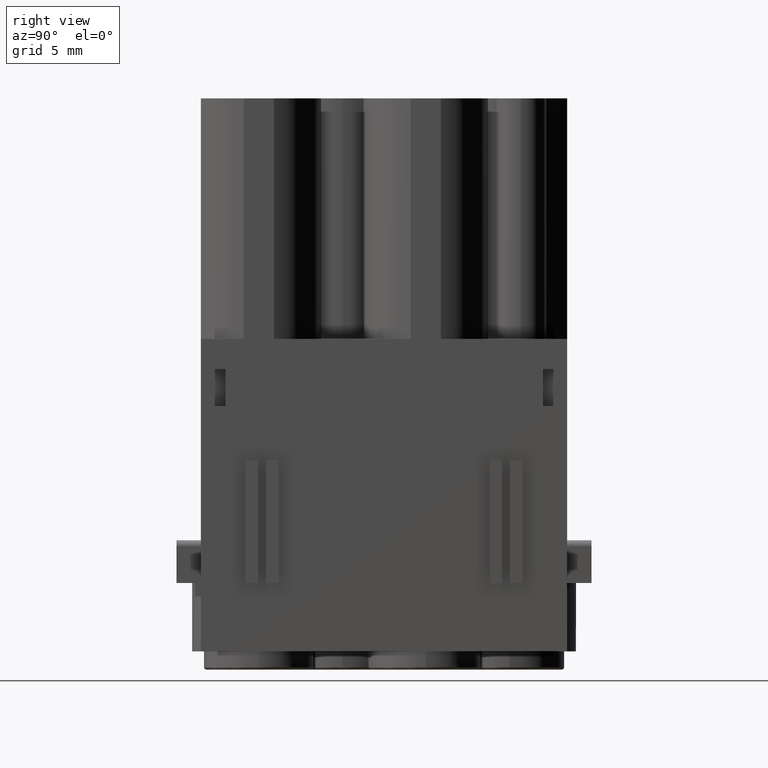
[diagram: clean part render]
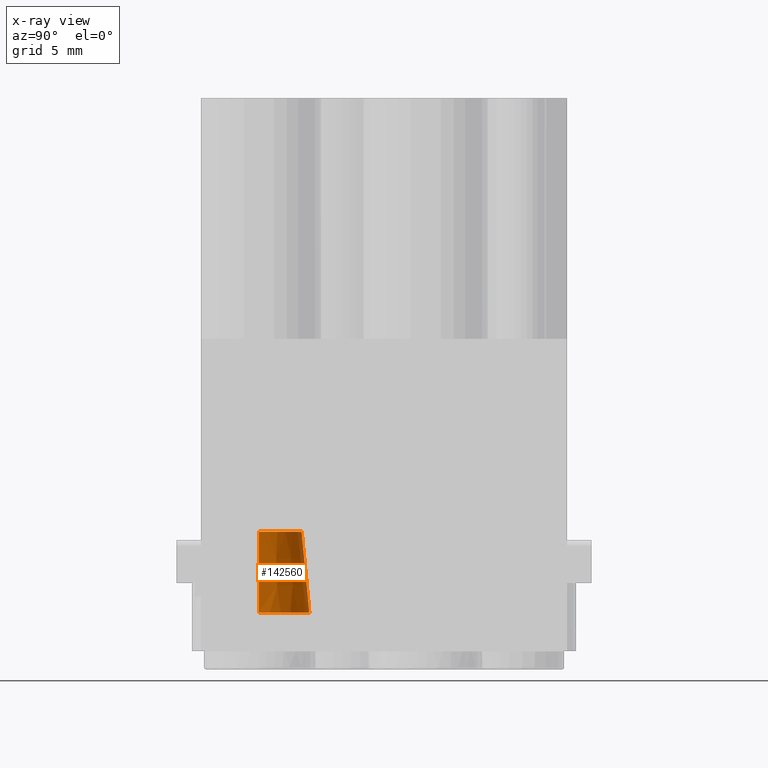
[diagram: x-ray — body ghosted, one internal face saturated and labeled with its STEP entity id]
A machine part, right view, then the same camera in x-ray: the body is ghosted and one INTERNAL B-rep face — a face not visible from any outside direction — is saturated and labeled: STEP entity #142560.
In plain terms, the highlighted conical surface has half-angle 5.46 deg.
Its self-contained STEP definition (entity closure, byte-faithful):
#141550=CARTESIAN_POINT('',(54.597735,74.0571830000002,-27.2500000000007
));
#141560=VERTEX_POINT('',#141550);
#141590=CARTESIAN_POINT('',(55.247735,80.8571830000002,-27.2500000000008
));
#141600=DIRECTION('',(-0.0951545051762874,-0.995462515690398,
1.24673516317041E-14));
#141610=VECTOR('',#141600,1.);
#141620=LINE('',#141590,#141610);
#141630=CARTESIAN_POINT('',(55.2304364831872,80.6762139010354,
-27.2500000000008));
#141640=VERTEX_POINT('',#141630);
#141650=EDGE_CURVE('',#141640,#141560,#141620,.T.);
#141970=CARTESIAN_POINT('',(51.097735,74.0571830000002,-27.2500000000007
));
#141980=DIRECTION('',(-6.90946319918557E-31,1.,-1.24773551709422E-14));
#141990=DIRECTION('',(-4.89858719658941E-16,-1.24773551709422E-14,-1.));
#142000=AXIS2_PLACEMENT_3D('',#141970,#141980,#141990);
#142010=CIRCLE('',#142000,3.50000000000001);
#142020=CARTESIAN_POINT('',(51.097735,74.0571830000002,-23.7500000000007
));
#142030=VERTEX_POINT('',#142020);
#142040=EDGE_CURVE('',#142030,#141560,#142010,.T.);
#142320=CARTESIAN_POINT('',(51.097735,80.8571830000002,-27.2500000000008
));
#142330=DIRECTION('',(0.,1.,-1.23564439253815E-14));
#142340=DIRECTION('',(4.89858719658941E-16,1.24773551709422E-14,1.));
#142350=AXIS2_PLACEMENT_3D('',#142320,#142330,#142340);
#142360=CONICAL_SURFACE('',#142350,4.15000000000001,0.0952986875918424);
#142370=CARTESIAN_POINT('',(51.097735,80.6762139010354,-27.2500000000008
));
#142380=DIRECTION('',(-6.90946319918557E-31,1.,-1.24773551709422E-14));
#142390=DIRECTION('',(1.,6.80308754868617E-30,4.89858719658941E-16));
#142400=AXIS2_PLACEMENT_3D('',#142370,#142380,#142390);
#142410=CIRCLE('',#142400,4.13270148318719);
#142420=CARTESIAN_POINT('',(51.097735,80.6762139010354,-23.1172985168136
));
#142430=VERTEX_POINT('',#142420);
#142440=EDGE_CURVE('',#142430,#141640,#142410,.T.);
#142450=ORIENTED_EDGE('',*,*,#142440,.F.);
#142460=ORIENTED_EDGE('',*,*,#141650,.F.);
#142470=ORIENTED_EDGE('',*,*,#142040,.T.);
#142480=CARTESIAN_POINT('',(51.097735,80.8571830000003,-23.1000000000008
));
#142490=DIRECTION('',(0.,0.995462515690399,0.0951545051762751));
#142500=VECTOR('',#142490,43.613279185379);
#142510=LINE('',#142480,#142500);
#142520=EDGE_CURVE('',#142030,#142430,#142510,.T.);
#142530=ORIENTED_EDGE('',*,*,#142520,.F.);
#142540=EDGE_LOOP('',(#142530,#142470,#142460,#142450));
#142550=FACE_OUTER_BOUND('',#142540,.T.);
#142560=ADVANCED_FACE('',(#142550),#142360,.T.);